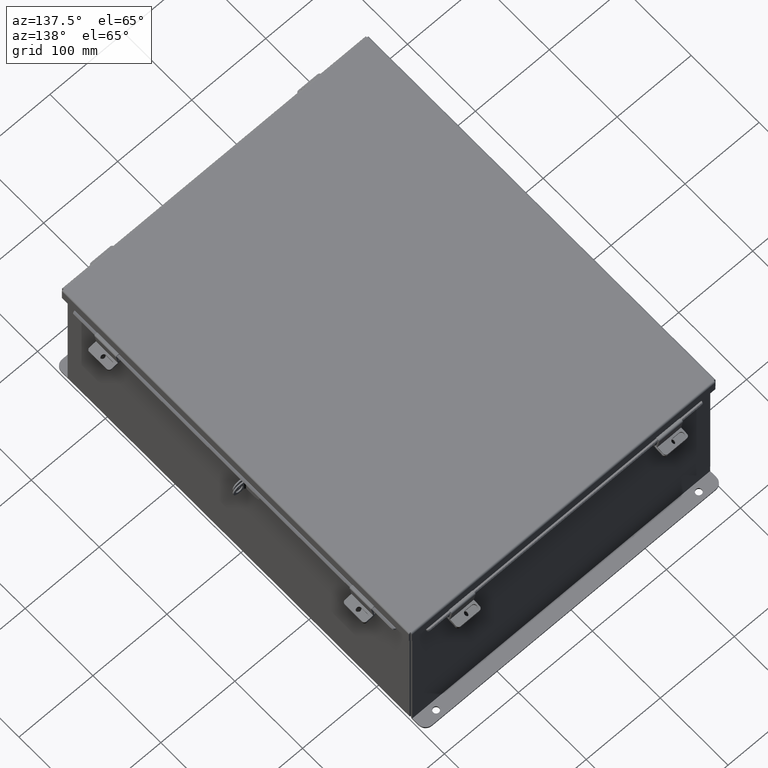
[diagram: clean part render]
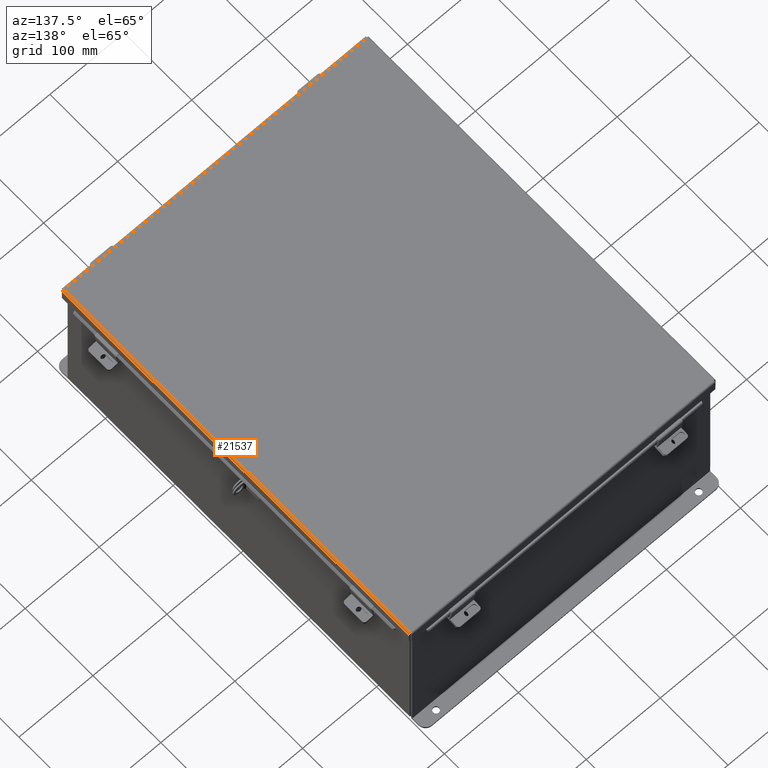
[diagram: same view with one face highlighted and labeled with its STEP entity id]
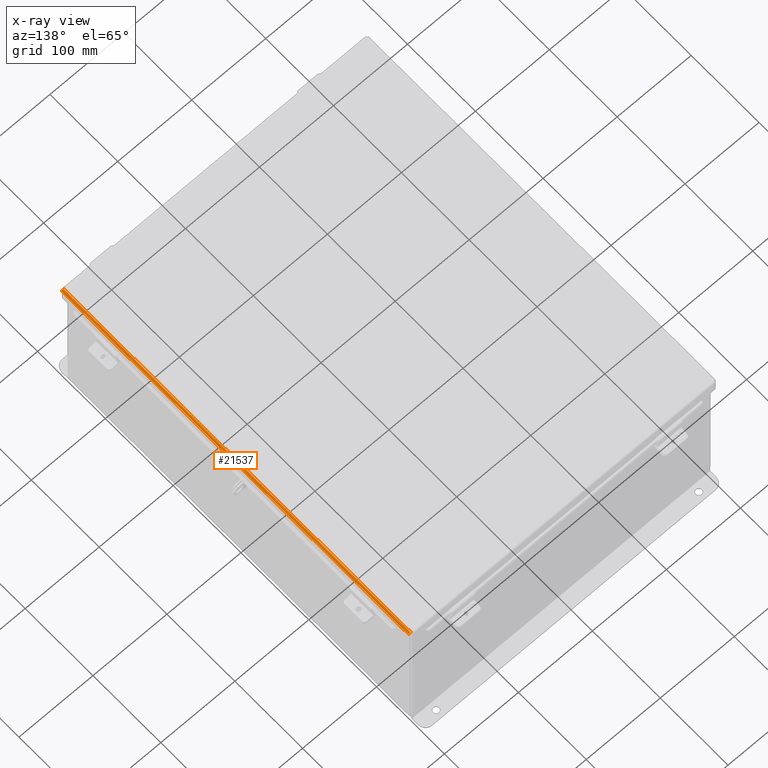
[diagram: x-ray of the same camera — body ghosted, the highlighted face saturated]
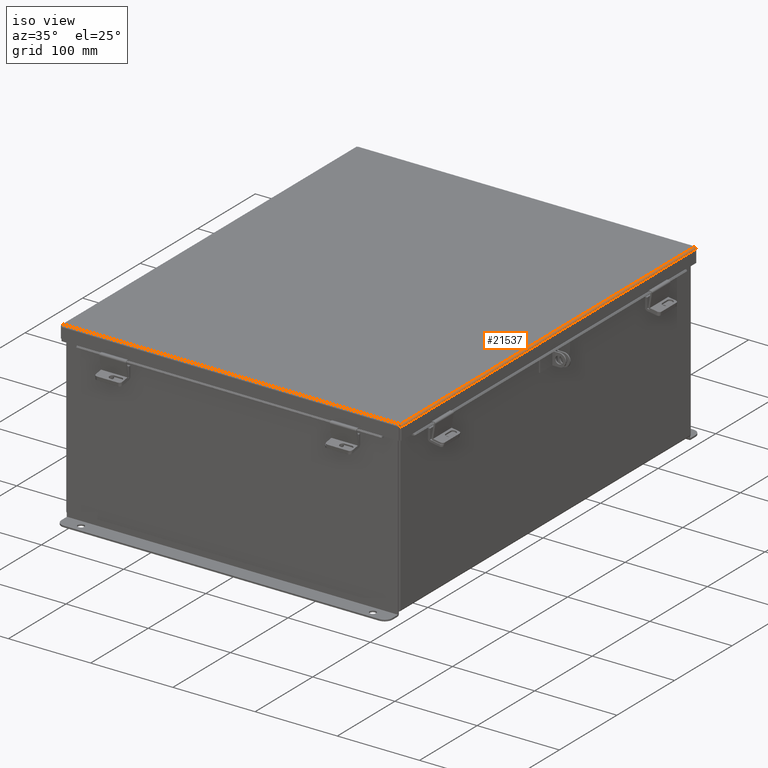
[diagram: same view with one face highlighted and labeled with its STEP entity id]
A machine part, auxiliary view. The second image highlights one B-rep face of the part: STEP entity #21537.
The next image is the same camera in x-ray: the body ghosted, the highlighted face saturated — about 0% of this face is hidden behind the body in this view.
A second angle (iso view) of the same face is appended — the face is thin or edge-on in the first view.
In plain terms, the highlighted cylindrical surface (edge-blend (fillet) strip) has radius 2.2276 mm, axis along (-0, -1, -0).
Its self-contained STEP definition (entity closure, byte-faithful):
#2037 = ORIENTED_EDGE ( 'NONE', *, *, #16364, .F. ) ;
#2072 = ORIENTED_EDGE ( 'NONE', *, *, #19309, .F. ) ;
#2323 = CARTESIAN_POINT ( 'NONE',  ( -8.068550000000033900, -10.07447893218815200, -0.07470000000000015500 ) ) ;
#2554 = LINE ( 'NONE', #7509, #7593 ) ;
#2578 = CARTESIAN_POINT ( 'NONE',  ( -8.153967403743845200, -10.07349077682346200, -0.009955289458309115500 ) ) ;
#2970 = CARTESIAN_POINT ( 'NONE',  ( -8.156250000000032000, 10.07447893218811600, 0.01300000000000010700 ) ) ;
#3743 = CARTESIAN_POINT ( 'NONE',  ( -8.153967403743845200, 10.07349077682342300, -0.009955289458309117200 ) ) ;
#4266 = CARTESIAN_POINT ( 'NONE',  ( -8.138680782078353100, -10.07200854377642900, -0.04089574734180033400 ) ) ;
#5469 = DIRECTION ( 'NONE',  ( -1.000000000000000000, 0.0000000000000000000, -3.577373637655407700E-015 ) ) ;
#5878 = CARTESIAN_POINT ( 'NONE',  ( -8.156250000000032000, -10.07398485450580800, 0.001520096845007062900 ) ) ;
#5952 = CARTESIAN_POINT ( 'NONE',  ( -8.112717384578561000, -10.07052631072939500, -0.06363106625866871100 ) ) ;
#6740 = EDGE_CURVE ( 'NONE', #9152, #8630, #9341, .T. ) ;
#7138 = DIRECTION ( 'NONE',  ( 3.166671605124525800E-030, 1.000000000000000000, 1.853823127269377700E-029 ) ) ;
#7190 = DIRECTION ( 'NONE',  ( -3.166671605124525800E-030, -1.000000000000000000, -1.853823127269377700E-029 ) ) ;
#7435 = DIRECTION ( 'NONE',  ( 3.166671605124525800E-030, 1.000000000000000000, 1.853823127269377700E-029 ) ) ;
#7509 = CARTESIAN_POINT ( 'NONE',  ( -8.156250000000032000, 10.15624999999998200, 0.01300000000000010700 ) ) ;
#7593 = VECTOR ( 'NONE', #7138, 39.37007874015748100 ) ;
#7690 = CARTESIAN_POINT ( 'NONE',  ( -8.080029903155026000, -10.06904407768236200, -0.07470000000000032200 ) ) ;
#8226 = VERTEX_POINT ( 'NONE', #10322 ) ;
#8630 = VERTEX_POINT ( 'NONE', #2970 ) ;
#9035 = CARTESIAN_POINT ( 'NONE',  ( -8.156250000000032000, 10.07447893218811600, 0.01300000000000010700 ) ) ;
#9064 = CARTESIAN_POINT ( 'NONE',  ( -8.156250000000032000, -10.07447893218815200, 0.01299999999999901400 ) ) ;
#9152 = VERTEX_POINT ( 'NONE', #18456 ) ;
#9341 = B_SPLINE_CURVE_WITH_KNOTS ( 'NONE', 3,
 ( #9974, #18498, #20518, #11446, #12197, #12357, #20916, #3743, #22077, #9035 ),
 .UNSPECIFIED., .F., .F.,
 ( 4, 2, 2, 2, 4 ),
 ( 0.0000000000000000000, 0.2500000000000000000, 0.5000000000000000000, 0.7500000000000000000, 1.000000000000000000 ),
 .UNSPECIFIED. ) ;
#9669 = EDGE_CURVE ( 'NONE', #8226, #8630, #2554, .T. ) ;
#9974 = CARTESIAN_POINT ( 'NONE',  ( -8.068550000000033900, 10.06854999999998100, -0.07470000000000015500 ) ) ;
#10322 = CARTESIAN_POINT ( 'NONE',  ( -8.156250000000032000, -10.07447893218815200, 0.01299999999999901400 ) ) ;
#10603 = CARTESIAN_POINT ( 'NONE',  ( -8.068550000000032100, -10.07447893218815200, 0.01300000000000010700 ) ) ;
#11446 = CARTESIAN_POINT ( 'NONE',  ( -8.112717384578559200, 10.07052631072936000, -0.06363106625866869800 ) ) ;
#11621 = VECTOR ( 'NONE', #7435, 39.37007874015748100 ) ;
#12170 = LINE ( 'NONE', #2323, #11621 ) ;
#12197 = CARTESIAN_POINT ( 'NONE',  ( -8.122445747341833700, 10.07102038841170500, -0.05713078207832070900 ) ) ;
#12357 = CARTESIAN_POINT ( 'NONE',  ( -8.138680782078349600, 10.07200854377639500, -0.04089574734180034100 ) ) ;
#12762 = B_SPLINE_CURVE_WITH_KNOTS ( 'NONE', 3,
 ( #9064, #5878, #2578, #14581, #4266, #16331, #5952, #18062, #7690, #19841 ),
 .UNSPECIFIED., .F., .F.,
 ( 4, 2, 2, 2, 4 ),
 ( 0.0000000000000000000, 0.2500000000000000000, 0.5000000000000000000, 0.7500000000000000000, 1.000000000000000000 ),
 .UNSPECIFIED. ) ;
#12947 = ORIENTED_EDGE ( 'NONE', *, *, #6740, .F. ) ;
#14581 = CARTESIAN_POINT ( 'NONE',  ( -8.145181066258699000, -10.07250262145877100, -0.03116738457852814100 ) ) ;
#16152 = CYLINDRICAL_SURFACE ( 'NONE', #22355, 0.08770000000000026400 ) ;
#16331 = CARTESIAN_POINT ( 'NONE',  ( -8.122445747341833700, -10.07102038841173900, -0.05713078207832069500 ) ) ;
#16364 = EDGE_CURVE ( 'NONE', #8226, #18251, #12762, .T. ) ;
#16681 = FACE_OUTER_BOUND ( 'NONE', #16761, .T. ) ;
#16761 = EDGE_LOOP ( 'NONE', ( #2072, #2037, #20302, #12947 ) ) ;
#18062 = CARTESIAN_POINT ( 'NONE',  ( -8.091505289458341500, -10.06953815536470200, -0.07241740374381157300 ) ) ;
#18251 = VERTEX_POINT ( 'NONE', #18283 ) ;
#18283 = CARTESIAN_POINT ( 'NONE',  ( -8.068550000000033900, -10.06855000000001600, -0.07470000000000015500 ) ) ;
#18456 = CARTESIAN_POINT ( 'NONE',  ( -8.068550000000033900, 10.06854999999998100, -0.07470000000000015500 ) ) ;
#18498 = CARTESIAN_POINT ( 'NONE',  ( -8.080029903155026000, 10.06904407768232800, -0.07470000000000029400 ) ) ;
#19309 = EDGE_CURVE ( 'NONE', #18251, #9152, #12170, .T. ) ;
#19841 = CARTESIAN_POINT ( 'NONE',  ( -8.068550000000033900, -10.06855000000001600, -0.07470000000000015500 ) ) ;
#20302 = ORIENTED_EDGE ( 'NONE', *, *, #9669, .T. ) ;
#20518 = CARTESIAN_POINT ( 'NONE',  ( -8.091505289458341500, 10.06953815536467400, -0.07241740374381158700 ) ) ;
#20916 = CARTESIAN_POINT ( 'NONE',  ( -8.145181066258700800, 10.07250262145873700, -0.03116738457852815500 ) ) ;
#21537 = ADVANCED_FACE ( 'NONE', ( #16681 ), #16152, .T. ) ;
#22077 = CARTESIAN_POINT ( 'NONE',  ( -8.156250000000032000, 10.07398485450577000, 0.001520096845007063500 ) ) ;
#22355 = AXIS2_PLACEMENT_3D ( 'NONE', #10603, #7190, #5469 ) ;